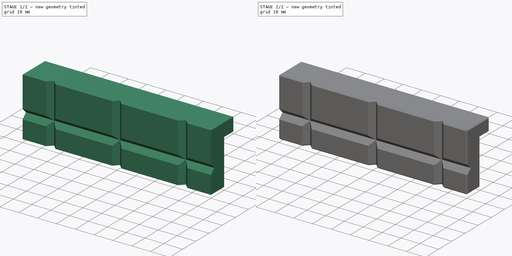
[diagram: build sequence overview — one tinted view per stage of 2, left to right]
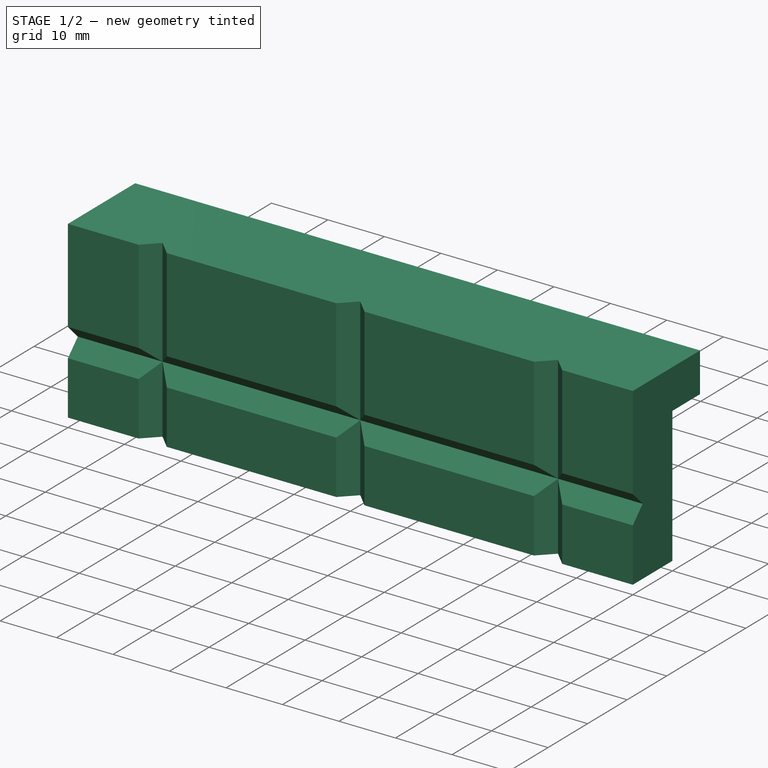
[diagram: stage 1 of 2 — iso view after this stage's code; geometry added in this stage tinted green]
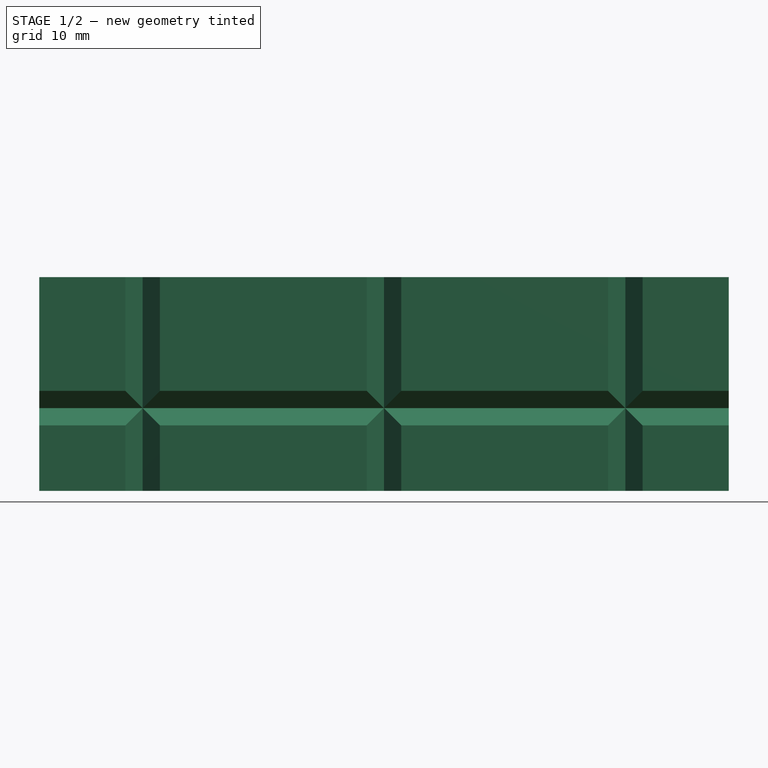
[diagram: stage 1 of 2 — front view after this stage's code; geometry added in this stage tinted green]
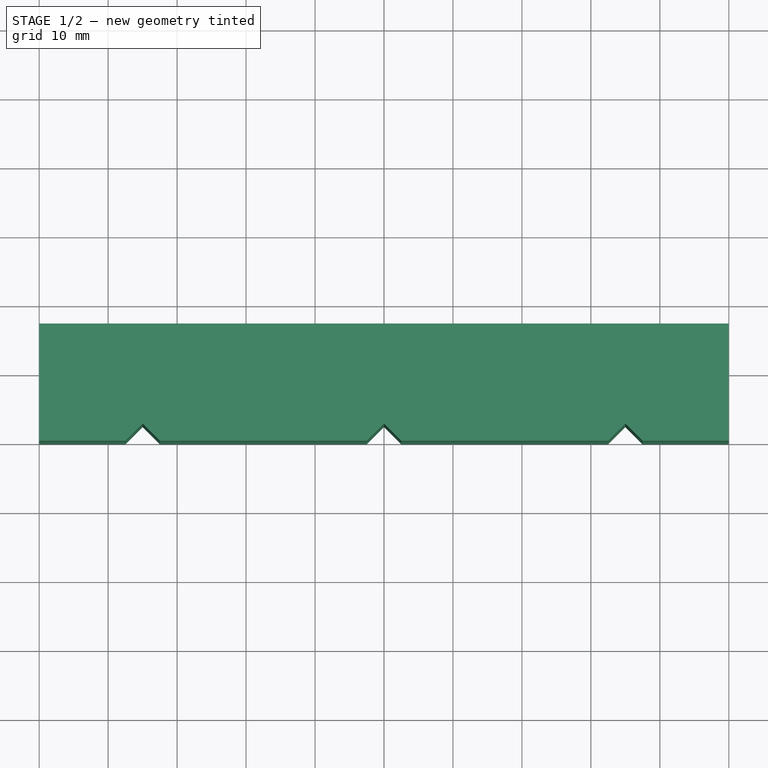
[diagram: stage 1 of 2 — top view after this stage's code; geometry added in this stage tinted green]
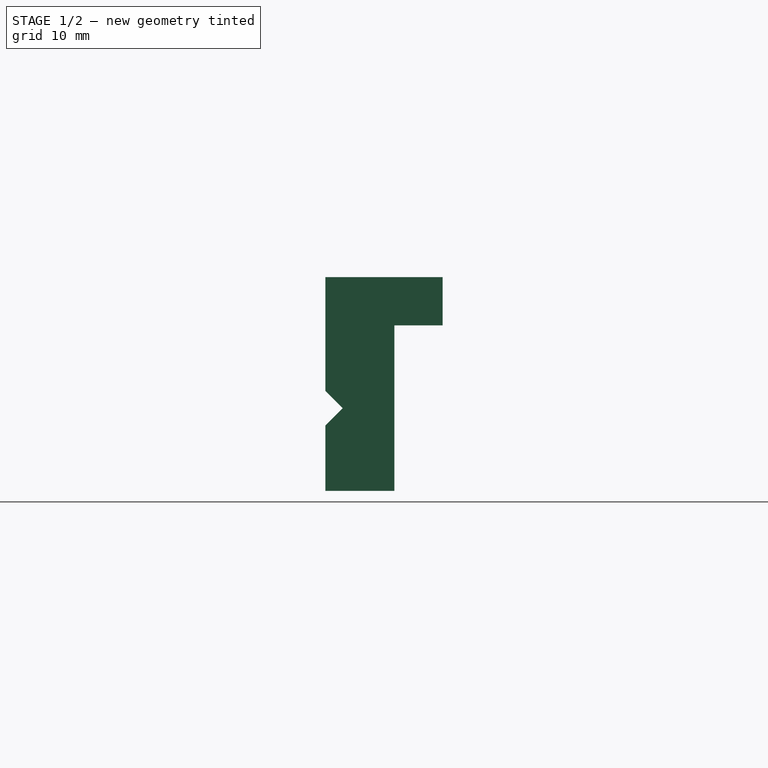
[diagram: stage 1 of 2 — right view after this stage's code; geometry added in this stage tinted green]
FCSTD DOCUMENT  (FreeCAD 0.19R22960 (Git))
Label: Schraubstockbacken
License: All rights reserved
LicenseURL: http://en.wikipedia.org/wiki/All_rights_reserved
objects: Sketcher::SketchObject×3, PartDesign::Pocket×2, PartDesign::Pad×1, PartDesign::Chamfer×1, PartDesign::Body×1
note: 12 computed .brp shape members not serialized (recipe doc carries the construction recipe); baked Part::Feature solids carry a one-line shape summary decoded from their .brp

FEATURE [Sketcher::SketchObject] Sketch
  MapMode = 5
  Placement = pos=(0,0,0) rot=(0.57735,0.57735,0.57735;2.0944rad)
  Support = -> [YZ_Plane]
  sketch-geometry (10):
    g0: LineSegment StartX=7 StartY=7 StartZ=0 EndX=-10 EndY=7 EndZ=0
    g1: LineSegment StartX=-10 StartY=7 StartZ=0 EndX=-10 EndY=-9.5 EndZ=0
    g2: LineSegment StartX=-10 StartY=-9.5 StartZ=0 EndX=-7.5 EndY=-12 EndZ=0
    g3: LineSegment StartX=-7.5 StartY=-12 StartZ=0 EndX=-10 EndY=-14.5 EndZ=0
    g4: LineSegment StartX=-10 StartY=-14.5 StartZ=0 EndX=-10 EndY=-24 EndZ=0
    g5: LineSegment StartX=-10 StartY=-24 StartZ=0 EndX=0 EndY=-24 EndZ=0
    g6: LineSegment StartX=0 StartY=-24 StartZ=0 EndX=0 EndY=0 EndZ=0
    g7: LineSegment [constr] StartX=-10 StartY=-9.5 StartZ=0 EndX=-10 EndY=-14.5 EndZ=0
    g8: LineSegment StartX=0 StartY=0 StartZ=0 EndX=7 EndY=0 EndZ=0
    g9: LineSegment StartX=7 StartY=0 StartZ=0 EndX=7 EndY=7 EndZ=0
  constraints (29):
    c: Horizontal(g0)
    c: Coincident(g1,g0)
    c: Vertical(g1)
    c: Coincident(g3,g2)
    c: Vertical(g4)
    c: Coincident(g5,g4)
    c: PointOnObject(g5,g-2)
    c: Horizontal(g5)
    c: Coincident(g6,g5)
    c: Vertical(g6)
    c: Coincident(g7,g1)
    c: Coincident(g7,g3)
    c: Vertical(g7)
    c: Coincident(g8,g6)
    c: PointOnObject(g8,g-1)
    c: Horizontal(g8)
    c: DistanceX(g8,g8) = 7
    c: Coincident(g9,g8)
    c: Vertical(g9)
    c: Coincident(g0,g9)
    c: DistanceY(g9,g9) = 7
    c: DistanceY(g6,g6) = 24
    c: DistanceY(g7,g7) = 5
    c: Coincident(g4,g3)
    c: Coincident(g2,g1)
    c: Angle(g2,g3) = 1.5708
    c: DistanceX(g5,g5) = 10
    c: Equal(g2,g3)
    c: DistanceY(g4,g2) = 12
FEATURE [PartDesign::Pad] Pad
  Direction = (1,1,1)
  Length = 100
  Length2 = 100
  Midplane = true
  Placement = pos=(0,0,0) rot=(0.57735,0.57735,0.57735;2.0944rad)
  Profile = -> Sketch
  Type = 0
FEATURE [Sketcher::SketchObject] Sketch001
  MapMode = 5
  Support = -> [XY_Plane]
  sketch-geometry (11):
    g0: LineSegment StartX=-37.5 StartY=-10 StartZ=0 EndX=-32.5 EndY=-10 EndZ=0
    g1: LineSegment [constr] StartX=-32.5 StartY=-10 StartZ=0 EndX=-2.5 EndY=-10 EndZ=0
    g2: LineSegment StartX=-2.5 StartY=-10 StartZ=0 EndX=2.5 EndY=-10 EndZ=0
    g3: LineSegment [constr] StartX=2.5 StartY=-10 StartZ=0 EndX=32.5 EndY=-10 EndZ=0
    g4: LineSegment StartX=32.5 StartY=-10 StartZ=0 EndX=37.5 EndY=-10 EndZ=0
    g5: LineSegment StartX=-37.5 StartY=-10 StartZ=0 EndX=-35 EndY=-7.5 EndZ=0
    g6: LineSegment StartX=-35 StartY=-7.5 StartZ=0 EndX=-32.5 EndY=-10 EndZ=0
    g7: LineSegment StartX=-2.5 StartY=-10 StartZ=0 EndX=0 EndY=-7.5 EndZ=0
    g8: LineSegment StartX=0 StartY=-7.5 StartZ=0 EndX=2.5 EndY=-10 EndZ=0
    g9: LineSegment StartX=32.5 StartY=-10 StartZ=0 EndX=35 EndY=-7.5 EndZ=0
    g10: LineSegment StartX=35 StartY=-7.5 StartZ=0 EndX=37.5 EndY=-10 EndZ=0
  constraints (31):
    c: Horizontal(g0)
    c: Coincident(g1,g0)
    c: Horizontal(g1)
    c: Horizontal(g2)
    c: Coincident(g3,g2)
    c: Horizontal(g3)
    c: Coincident(g4,g3)
    c: Horizontal(g4)
    c: Coincident(g5,g0)
    c: Coincident(g6,g0)
    c: Coincident(g7,g1)
    c: PointOnObject(g7,g-2)
    c: Coincident(g8,g2)
    c: Coincident(g9,g3)
    c: Coincident(g10,g9)
    c: Coincident(g10,g4)
    c: Equal(g2,g0)
    c: Equal(g0,g4)
    c: Equal(g7,g8)
    c: Equal(g5,g6)
    c: Equal(g9,g10)
    c: Coincident(g7,g8)
    c: Coincident(g7,g2)
    c: Coincident(g5,g6)
    c: DistanceX(g0,g0) = 5
    c: Angle(g5,g6) = 1.5708
    c: DistanceX(g5,g7) = 35
    c: Angle(g7,g8) = 1.5708
    c: Angle(g9,g10) = 1.5708
    c: Equal(g3,g1)
    c: DistanceY(g2,g-1) = 10
FEATURE [PartDesign::Pocket] Pocket
  BaseFeature = -> Pad
  Length = 5
  Length2 = 100
  Midplane = true
  Placement = pos=(0,0,0) rot=(0.57735,0.57735,0.57735;2.0944rad)
  Profile = -> Sketch001
  Type = 1
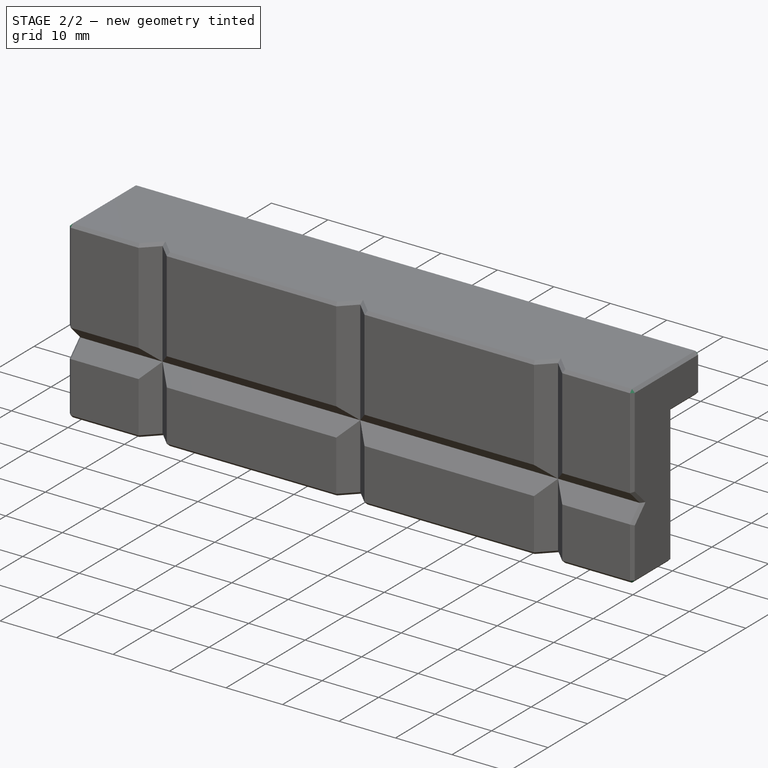
[diagram: stage 2 of 2 — iso view after this stage's code; geometry added in this stage tinted green]
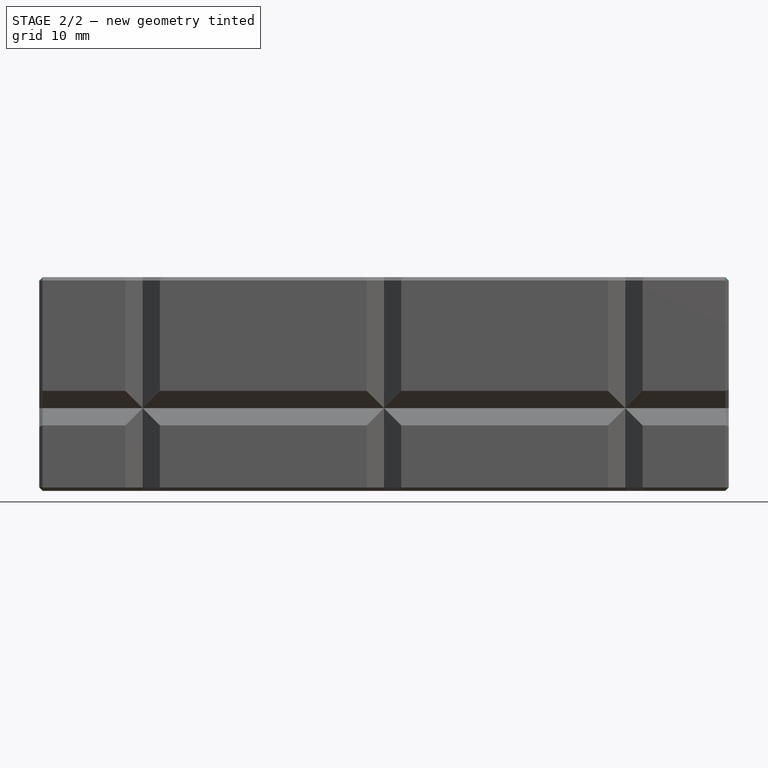
[diagram: stage 2 of 2 — front view after this stage's code; geometry added in this stage tinted green]
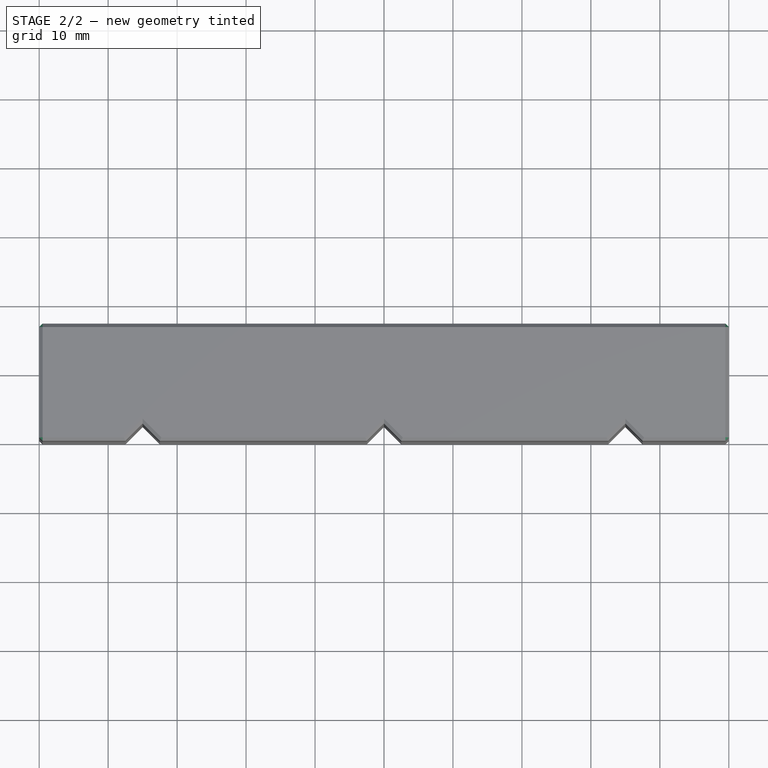
[diagram: stage 2 of 2 — top view after this stage's code; geometry added in this stage tinted green]
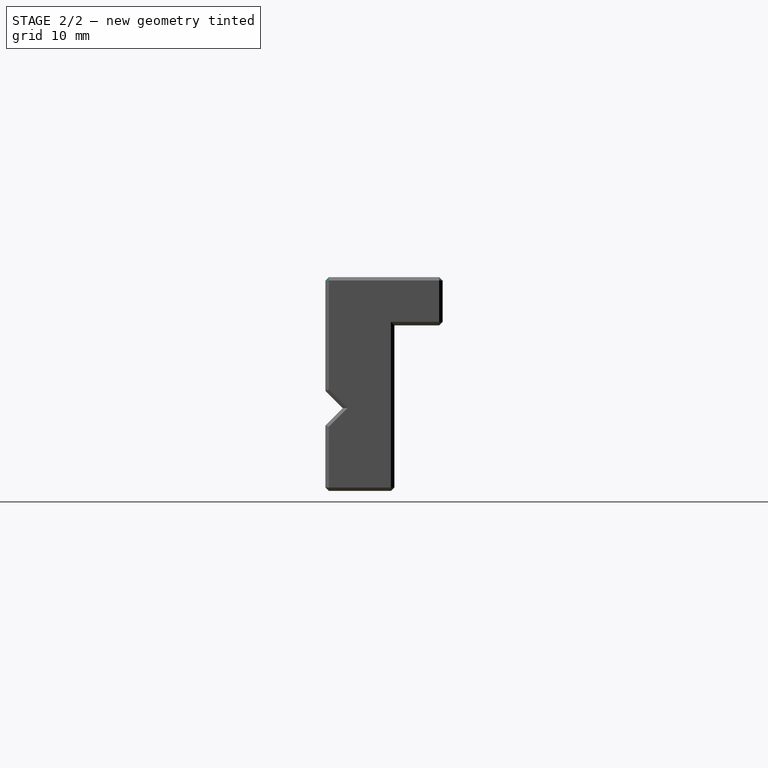
[diagram: stage 2 of 2 — right view after this stage's code; geometry added in this stage tinted green]
FEATURE [Sketcher::SketchObject] Sketch002
  MapMode = 5
  Placement = pos=(0,0,0) rot=(1,0,0;1.5708rad)
  Support = -> [XZ_Plane]
  sketch-geometry (9):
    g0: LineSegment StartX=-23 StartY=-6 StartZ=0 EndX=-17 EndY=-6 EndZ=0
    g1: LineSegment StartX=-17 StartY=-6 StartZ=0 EndX=-17 EndY=-18 EndZ=0
    g2: LineSegment StartX=-17 StartY=-18 StartZ=0 EndX=-23 EndY=-18 EndZ=0
    g3: LineSegment StartX=-23 StartY=-18 StartZ=0 EndX=-23 EndY=-6 EndZ=0
    g4: LineSegment StartX=17 StartY=-6 StartZ=0 EndX=11 EndY=-6 EndZ=0
    g5: LineSegment StartX=11 StartY=-6 StartZ=0 EndX=11 EndY=-18 EndZ=0
    g6: LineSegment StartX=11 StartY=-18 StartZ=0 EndX=17 EndY=-18 EndZ=0
    g7: LineSegment StartX=17 StartY=-18 StartZ=0 EndX=17 EndY=-6 EndZ=0
    g8: LineSegment [constr] StartX=-17 StartY=-6 StartZ=0 EndX=17 EndY=-6 EndZ=0
  constraints (25):
    c: Coincident(g0,g1)
    c: Coincident(g1,g2)
    c: Coincident(g2,g3)
    c: Coincident(g3,g0)
    c: Horizontal(g0)
    c: Horizontal(g2)
    c: Vertical(g1)
    c: Vertical(g3)
    c: Coincident(g4,g5)
    c: Coincident(g5,g6)
    c: Coincident(g6,g7)
    c: Coincident(g7,g4)
    c: Horizontal(g4)
    c: Horizontal(g6)
    c: Vertical(g5)
    c: Vertical(g7)
    c: Coincident(g8,g0)
    c: Coincident(g8,g4)
    c: Symmetric(g0,g4,g-2)
    c: Equal(g0,g4)
    c: Equal(g3,g7)
    c: DistanceY(g3,g3) = 12
    c: DistanceY(g4,g-1) = 6
    c: DistanceX(g2,g2) = 6
    c: DistanceX(g0,g4) = 34
FEATURE [PartDesign::Pocket] Pocket001  label="magnete"
  BaseFeature = -> Pocket
  Length = 3
  Length2 = 100
  Placement = pos=(0,0,0) rot=(0.57735,0.57735,0.57735;2.0944rad)
  Profile = -> Sketch002
  Reversed = true
  Type = 0
FEATURE [PartDesign::Chamfer] Chamfer
  Angle = 45
  Base = -> Pocket001 [Face13,Face2,Face14,Face1,Face18]
  BaseFeature = -> Pocket001
  ChamferType = 0
  FlipDirection = false
  Placement = pos=(0,0,0) rot=(0.57735,0.57735,0.57735;2.0944rad)
  Size = 0.5
  Size2 = 1
  SupportTransform = false
FEATURE [PartDesign::Body] Body
  Group = -> [Sketch,Pad,Sketch001,Pocket,Sketch002,Pocket001,Chamfer]
  Origin = -> Origin
  Tip = -> Chamfer
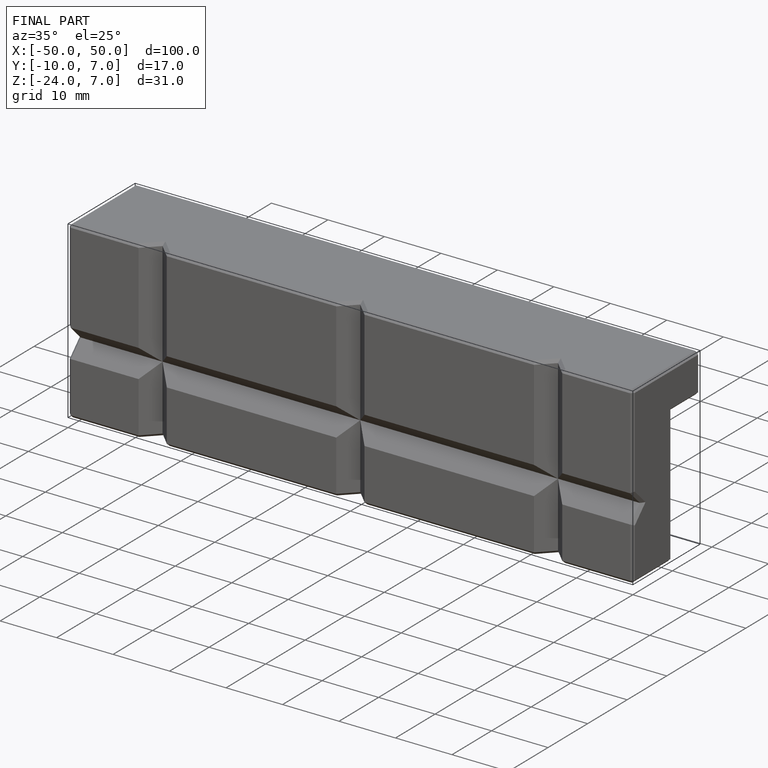
[diagram: finished part — iso view with bounding-box wireframe]
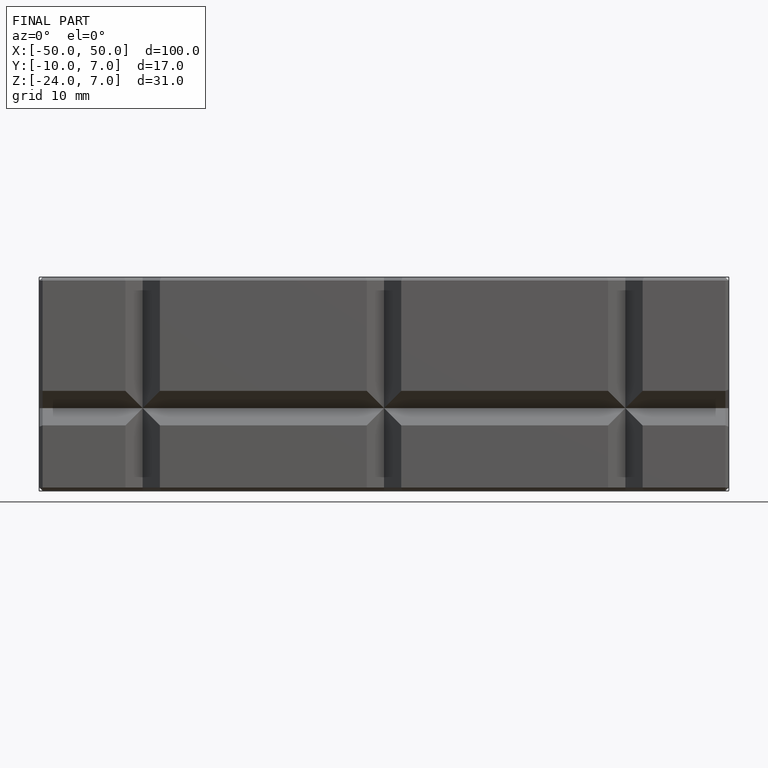
[diagram: finished part — front view with bounding-box wireframe]
